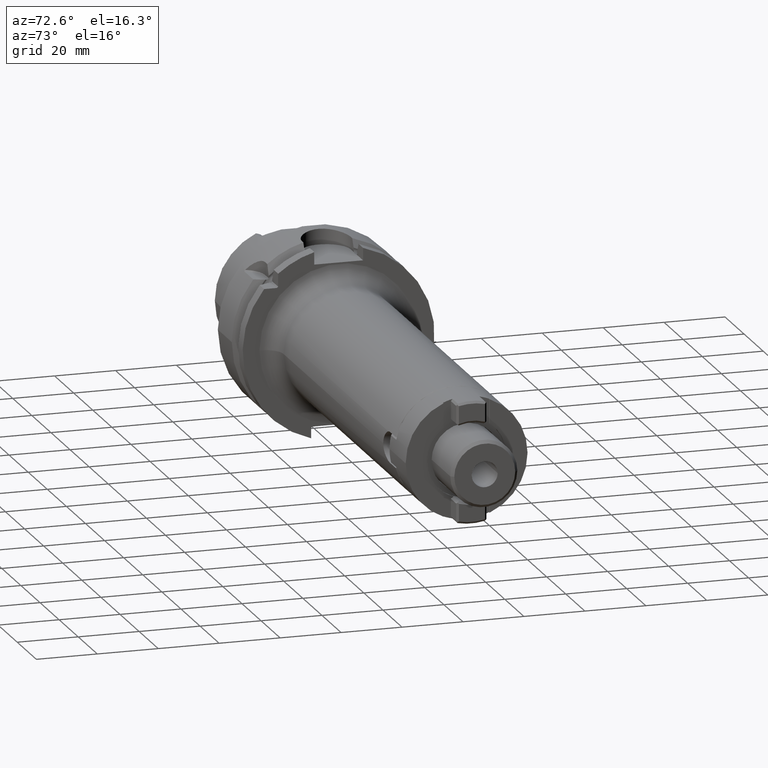
[diagram: clean part render]
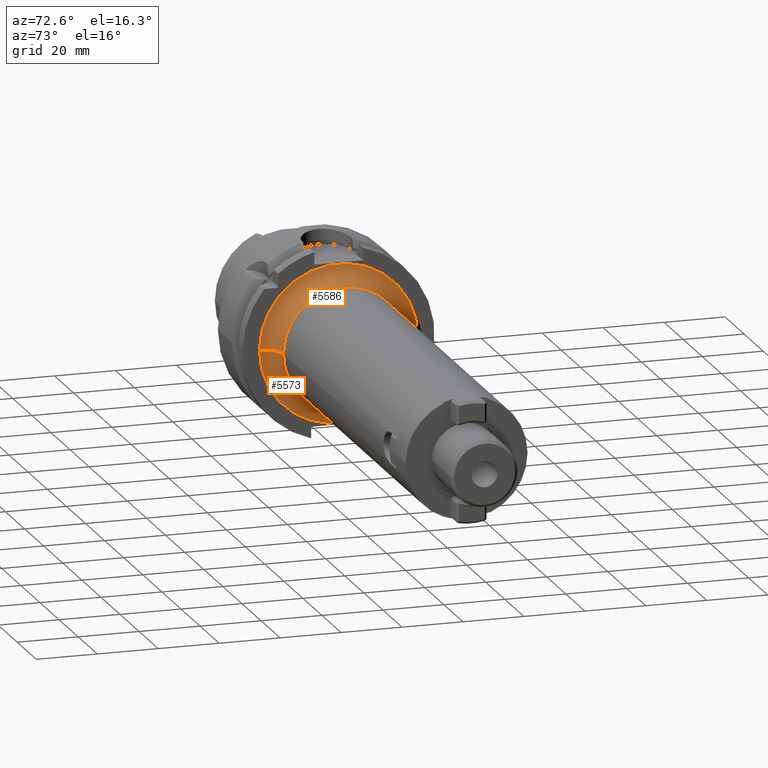
[diagram: same view with one multi-face feature highlighted, each face labeled with its STEP entity id]
A machine part, auxiliary view. The highlighted faces form ONE feature: a constant-radius fillet chain: 2 tangent blend faces with common blend radius 6 mm. The faces share edges in the B-rep.
Their STEP definitions:
[1] entity #5586 (Torus):
#1713=CARTESIAN_POINT('',(2.6E1,0.E0,0.E0));
#1714=DIRECTION('',(1.E0,0.E0,0.E0));
#1715=DIRECTION('',(0.E0,1.E0,0.E0));
#1716=AXIS2_PLACEMENT_3D('',#1713,#1714,#1715);
#1956=CARTESIAN_POINT('',(3.2E1,-2.6E1,2.768618667659E-13));
#1957=DIRECTION('',(0.E0,-1.064860005728E-14,-1.E0));
#1958=DIRECTION('',(-1.E0,0.E0,0.E0));
#1959=AXIS2_PLACEMENT_3D('',#1956,#1957,#1958);
#1961=CARTESIAN_POINT('',(3.2E1,2.6E1,-2.803035581422E-13));
#1962=DIRECTION('',(0.E0,1.078087272233E-14,1.E0));
#1963=DIRECTION('',(-1.E0,0.E0,0.E0));
#1964=AXIS2_PLACEMENT_3D('',#1961,#1962,#1963);
#1983=CARTESIAN_POINT('',(3.2E1,0.E0,0.E0));
#1984=DIRECTION('',(1.E0,0.E0,0.E0));
#1985=DIRECTION('',(0.E0,1.E0,0.E0));
#1986=AXIS2_PLACEMENT_3D('',#1983,#1984,#1985);
#3398=CARTESIAN_POINT('',(2.6E1,-2.6E1,0.E0));
#3399=CARTESIAN_POINT('',(2.6E1,2.6E1,0.E0));
#3400=VERTEX_POINT('',#3398);
#3401=VERTEX_POINT('',#3399);
#3402=CARTESIAN_POINT('',(3.2E1,-2.E1,0.E0));
#3403=CARTESIAN_POINT('',(3.2E1,2.E1,0.E0));
#3404=VERTEX_POINT('',#3402);
#3405=VERTEX_POINT('',#3403);
#5574=CARTESIAN_POINT('',(3.2E1,0.E0,0.E0));
#5575=DIRECTION('',(1.E0,0.E0,0.E0));
#5576=DIRECTION('',(0.E0,9.999926110723E-1,-3.844190531823E-3));
#5577=AXIS2_PLACEMENT_3D('',#5574,#5575,#5576);
#5578=TOROIDAL_SURFACE('',#5577,2.6E1,6.E0);
#5579=ORIENTED_EDGE('',*,*,#5268,.F.);
#5580=ORIENTED_EDGE('',*,*,#5569,.T.);
#5582=ORIENTED_EDGE('',*,*,#5581,.T.);
#5583=ORIENTED_EDGE('',*,*,#5565,.F.);
#5584=EDGE_LOOP('',(#5579,#5580,#5582,#5583));
#5585=FACE_OUTER_BOUND('',#5584,.F.);
#5586=ADVANCED_FACE('',(#5585),#5578,.F.);
#1717=CIRCLE('',#1716,2.6E1);
#1960=CIRCLE('',#1959,6.E0);
#1965=CIRCLE('',#1964,6.E0);
#1987=CIRCLE('',#1986,2.E1);
#5268=EDGE_CURVE('',#3401,#3400,#1717,.T.);
#5565=EDGE_CURVE('',#3400,#3404,#1960,.T.);
#5569=EDGE_CURVE('',#3401,#3405,#1965,.T.);
#5581=EDGE_CURVE('',#3405,#3404,#1987,.T.);
[2] entity #5573 (Torus):
#1708=CARTESIAN_POINT('',(2.6E1,0.E0,0.E0));
#1709=DIRECTION('',(1.E0,0.E0,0.E0));
#1710=DIRECTION('',(0.E0,-1.E0,0.E0));
#1711=AXIS2_PLACEMENT_3D('',#1708,#1709,#1710);
#1956=CARTESIAN_POINT('',(3.2E1,-2.6E1,2.768618667659E-13));
#1957=DIRECTION('',(0.E0,-1.064860005728E-14,-1.E0));
#1958=DIRECTION('',(-1.E0,0.E0,0.E0));
#1959=AXIS2_PLACEMENT_3D('',#1956,#1957,#1958);
#1961=CARTESIAN_POINT('',(3.2E1,2.6E1,-2.803035581422E-13));
#1962=DIRECTION('',(0.E0,1.078087272233E-14,1.E0));
#1963=DIRECTION('',(-1.E0,0.E0,0.E0));
#1964=AXIS2_PLACEMENT_3D('',#1961,#1962,#1963);
#2389=CARTESIAN_POINT('',(3.2E1,0.E0,0.E0));
#2390=DIRECTION('',(1.E0,0.E0,0.E0));
#2391=DIRECTION('',(0.E0,-1.E0,0.E0));
#2392=AXIS2_PLACEMENT_3D('',#2389,#2390,#2391);
#3398=CARTESIAN_POINT('',(2.6E1,-2.6E1,0.E0));
#3399=CARTESIAN_POINT('',(2.6E1,2.6E1,0.E0));
#3400=VERTEX_POINT('',#3398);
#3401=VERTEX_POINT('',#3399);
#3402=CARTESIAN_POINT('',(3.2E1,-2.E1,0.E0));
#3403=CARTESIAN_POINT('',(3.2E1,2.E1,0.E0));
#3404=VERTEX_POINT('',#3402);
#3405=VERTEX_POINT('',#3403);
#5559=CARTESIAN_POINT('',(3.2E1,0.E0,0.E0));
#5560=DIRECTION('',(1.E0,0.E0,0.E0));
#5561=DIRECTION('',(0.E0,-9.999926110723E-1,3.844190531823E-3));
#5562=AXIS2_PLACEMENT_3D('',#5559,#5560,#5561);
#5563=TOROIDAL_SURFACE('',#5562,2.6E1,6.E0);
#5564=ORIENTED_EDGE('',*,*,#5266,.F.);
#5566=ORIENTED_EDGE('',*,*,#5565,.T.);
#5568=ORIENTED_EDGE('',*,*,#5567,.T.);
#5570=ORIENTED_EDGE('',*,*,#5569,.F.);
#5571=EDGE_LOOP('',(#5564,#5566,#5568,#5570));
#5572=FACE_OUTER_BOUND('',#5571,.F.);
#5573=ADVANCED_FACE('',(#5572),#5563,.F.);
#1712=CIRCLE('',#1711,2.6E1);
#1960=CIRCLE('',#1959,6.E0);
#1965=CIRCLE('',#1964,6.E0);
#2393=CIRCLE('',#2392,2.E1);
#5266=EDGE_CURVE('',#3400,#3401,#1712,.T.);
#5565=EDGE_CURVE('',#3400,#3404,#1960,.T.);
#5567=EDGE_CURVE('',#3404,#3405,#2393,.T.);
#5569=EDGE_CURVE('',#3401,#3405,#1965,.T.);